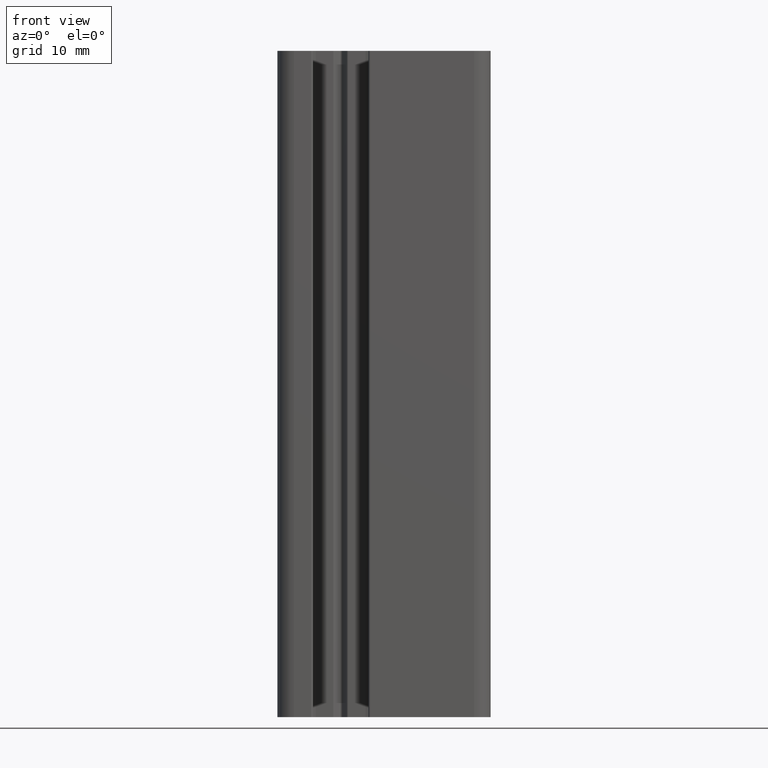
[diagram: clean part render]
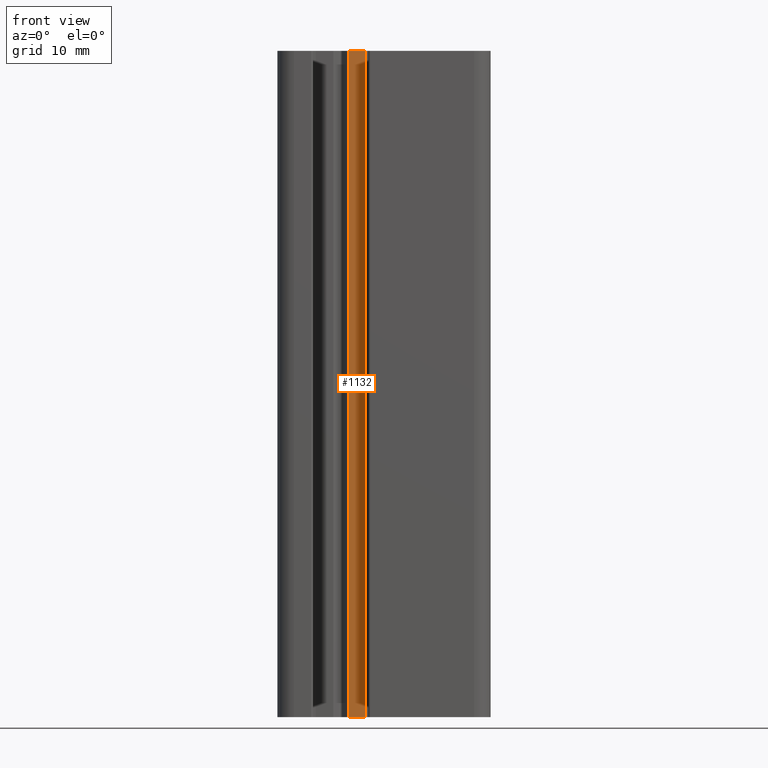
[diagram: same view with one face highlighted and labeled with its STEP entity id]
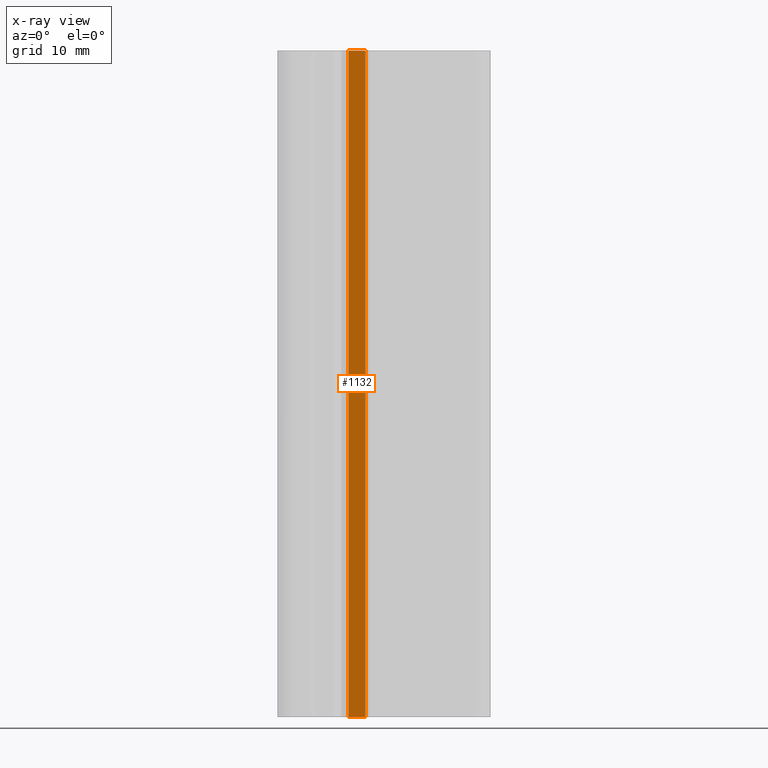
[diagram: x-ray of the same camera — body ghosted, the highlighted face saturated]
A machine part, front view. The second image highlights one B-rep face of the part: STEP entity #1132.
The next image is the same camera in x-ray: the body ghosted, the highlighted face saturated — about 0% of this face is hidden behind the body in this view.
In plain terms, the highlighted planar face has unit normal (0, 1, 0).
Its self-contained STEP definition (entity closure, byte-faithful):
#24=PLANE('',#1211);
#84=LINE('',#1740,#202);
#85=LINE('',#1744,#203);
#86=LINE('',#1746,#204);
#87=LINE('',#1747,#205);
#202=VECTOR('',#1394,100.);
#203=VECTOR('',#1399,2.56570460979728);
#204=VECTOR('',#1400,100.);
#205=VECTOR('',#1401,2.56570460979728);
#307=FACE_OUTER_BOUND('',#367,.T.);
#367=EDGE_LOOP('',(#818,#819,#820,#821));
#502=VERTEX_POINT('',#1737);
#503=VERTEX_POINT('',#1739);
#504=VERTEX_POINT('',#1743);
#505=VERTEX_POINT('',#1745);
#631=EDGE_CURVE('',#503,#502,#84,.T.);
#633=EDGE_CURVE('',#504,#502,#85,.T.);
#634=EDGE_CURVE('',#505,#504,#86,.T.);
#635=EDGE_CURVE('',#503,#505,#87,.T.);
#818=ORIENTED_EDGE('',*,*,#633,.F.);
#819=ORIENTED_EDGE('',*,*,#634,.F.);
#820=ORIENTED_EDGE('',*,*,#635,.F.);
#821=ORIENTED_EDGE('',*,*,#631,.T.);
#1132=ADVANCED_FACE('',(#307),#24,.F.);
#1211=AXIS2_PLACEMENT_3D('',#1742,#1397,#1398);
#1394=DIRECTION('',(0.,0.,1.));
#1397=DIRECTION('center_axis',(8.65433238406099E-16,1.,0.));
#1398=DIRECTION('ref_axis',(-1.,8.88178419700125E-16,0.));
#1399=DIRECTION('',(1.,-8.65433238406099E-16,0.));
#1400=DIRECTION('',(0.,0.,1.));
#1401=DIRECTION('',(-1.,8.65433238406099E-16,0.));
#1737=CARTESIAN_POINT('',(3.69999993120908,-7.2,100.));
#1739=CARTESIAN_POINT('',(3.69999993120908,-7.2,0.));
#1740=CARTESIAN_POINT('',(3.69999993120908,-7.2,0.));
#1742=CARTESIAN_POINT('Origin',(3.69999993120908,-7.2,0.));
#1743=CARTESIAN_POINT('',(1.13429532141181,-7.2,100.));
#1744=CARTESIAN_POINT('',(5.09999996560454,-7.2,100.));
#1745=CARTESIAN_POINT('',(1.13429532141181,-7.2,0.));
#1746=CARTESIAN_POINT('',(1.13429532141181,-7.2,0.));
#1747=CARTESIAN_POINT('',(5.09999996560454,-7.2,0.));